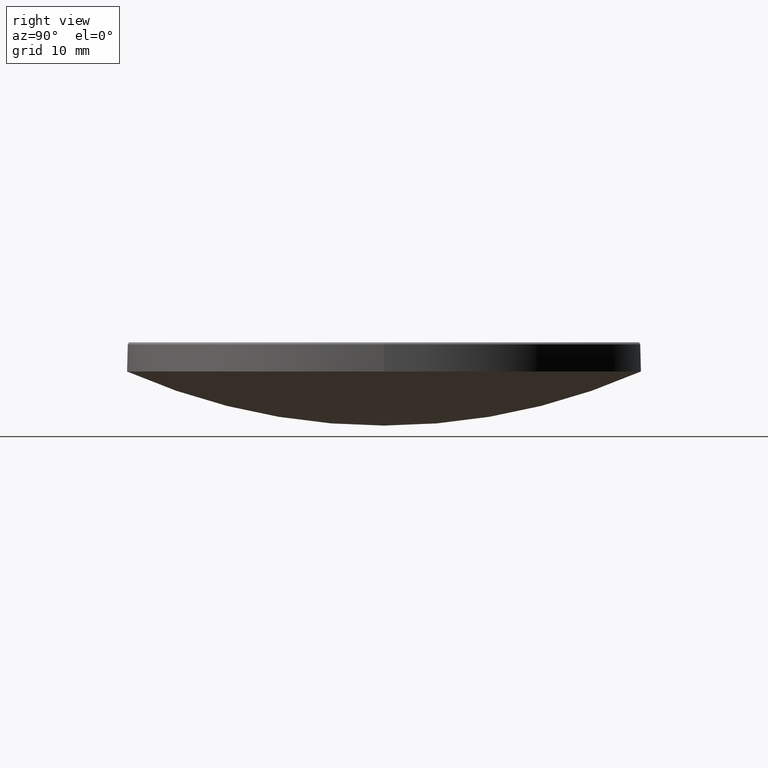
[diagram: clean part render]
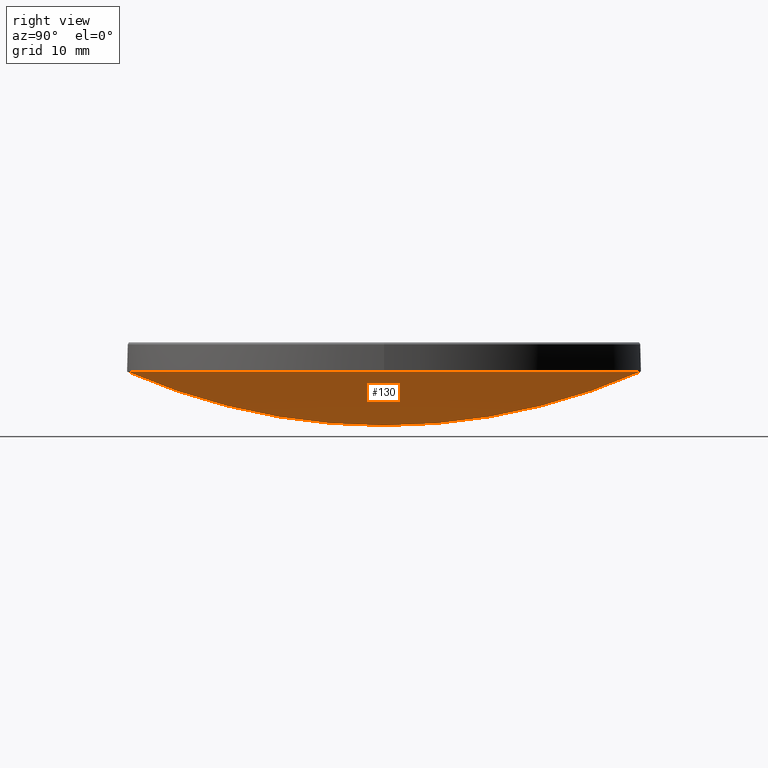
[diagram: same view with one face highlighted and labeled with its STEP entity id]
A machine part, right view. The second image highlights one B-rep face of the part: STEP entity #130.
In plain terms, the highlighted spherical surface has radius 63.02 mm.
Its self-contained STEP definition (entity closure, byte-faithful):
#7 = VERTEX_POINT ( 'NONE', #95 ) ;
#10 = EDGE_CURVE ( 'NONE', #160, #119, #40, .T. ) ;
#15 = DIRECTION ( 'NONE',  ( 0.000000000000000000, 1.000000000000000000, 0.000000000000000000 ) ) ;
#18 = CARTESIAN_POINT ( 'NONE',  ( 0.000000000000000000, 0.000000000000000000, 14.00000000000000000 ) ) ;
#20 = AXIS2_PLACEMENT_3D ( 'NONE', #41, #86, #15 ) ;
#23 = AXIS2_PLACEMENT_3D ( 'NONE', #247, #197, #232 ) ;
#35 = CARTESIAN_POINT ( 'NONE',  ( 25.39999999999999503, 3.110602869834276471E-15, 14.00000000000000000 ) ) ;
#37 = DIRECTION ( 'NONE',  ( -0.000000000000000000, -0.000000000000000000, 1.000000000000000000 ) ) ;
#40 = CIRCLE ( 'NONE', #23, 25.39999999999999503 ) ;
#41 = CARTESIAN_POINT ( 'NONE',  ( 0.000000000000000000, 0.000000000000000000, 71.67460793104710604 ) ) ;
#49 = VERTEX_POINT ( 'NONE', #75 ) ;
#75 = CARTESIAN_POINT ( 'NONE',  ( 0.000000000000000000, 3.858862064113310261E-15, 8.654607931047095803 ) ) ;
#86 = DIRECTION ( 'NONE',  ( -1.000000000000000000, 0.000000000000000000, 0.000000000000000000 ) ) ;
#95 = CARTESIAN_POINT ( 'NONE',  ( 0.000000000000000000, 25.39999999999999147, 14.00000000000000178 ) ) ;
#97 = ORIENTED_EDGE ( 'NONE', *, *, #201, .T. ) ;
#104 = CIRCLE ( 'NONE', #134, 63.02000000000000313 ) ;
#117 = DIRECTION ( 'NONE',  ( -1.224646799147353207E-16, -1.000000000000000000, 0.000000000000000000 ) ) ;
#119 = VERTEX_POINT ( 'NONE', #35 ) ;
#123 = CARTESIAN_POINT ( 'NONE',  ( -3.110602869834276076E-15, -25.39999999999999147, 14.00000000000000178 ) ) ;
#124 = DIRECTION ( 'NONE',  ( 1.000000000000000000, -0.000000000000000000, 0.000000000000000000 ) ) ;
#130 = ADVANCED_FACE ( 'NONE', ( #258 ), #216, .T. ) ;
#134 = AXIS2_PLACEMENT_3D ( 'NONE', #240, #248, #117 ) ;
#148 = ORIENTED_EDGE ( 'NONE', *, *, #256, .F. ) ;
#153 = AXIS2_PLACEMENT_3D ( 'NONE', #166, #124, #210 ) ;
#160 = VERTEX_POINT ( 'NONE', #123 ) ;
#166 = CARTESIAN_POINT ( 'NONE',  ( 0.000000000000000000, 0.000000000000000000, 71.67460793104710604 ) ) ;
#177 = EDGE_CURVE ( 'NONE', #119, #7, #186, .T. ) ;
#186 = CIRCLE ( 'NONE', #260, 25.39999999999999503 ) ;
#195 = EDGE_LOOP ( 'NONE', ( #148, #97, #262, #204 ) ) ;
#197 = DIRECTION ( 'NONE',  ( -0.000000000000000000, -0.000000000000000000, 1.000000000000000000 ) ) ;
#201 = EDGE_CURVE ( 'NONE', #49, #7, #215, .T. ) ;
#204 = ORIENTED_EDGE ( 'NONE', *, *, #10, .F. ) ;
#210 = DIRECTION ( 'NONE',  ( 0.000000000000000000, 0.000000000000000000, -1.000000000000000000 ) ) ;
#215 = CIRCLE ( 'NONE', #153, 63.02000000000000313 ) ;
#216 = SPHERICAL_SURFACE ( 'NONE', #20, 63.02000000000000313 ) ;
#232 = DIRECTION ( 'NONE',  ( 1.000000000000000000, 0.000000000000000000, 0.000000000000000000 ) ) ;
#236 = DIRECTION ( 'NONE',  ( 1.000000000000000000, 0.000000000000000000, 0.000000000000000000 ) ) ;
#240 = CARTESIAN_POINT ( 'NONE',  ( 0.000000000000000000, 0.000000000000000000, 71.67460793104710604 ) ) ;
#247 = CARTESIAN_POINT ( 'NONE',  ( 0.000000000000000000, 0.000000000000000000, 14.00000000000000000 ) ) ;
#248 = DIRECTION ( 'NONE',  ( -1.000000000000000000, 1.224646799147353207E-16, 0.000000000000000000 ) ) ;
#256 = EDGE_CURVE ( 'NONE', #49, #160, #104, .T. ) ;
#258 = FACE_OUTER_BOUND ( 'NONE', #195, .T. ) ;
#260 = AXIS2_PLACEMENT_3D ( 'NONE', #18, #37, #236 ) ;
#262 = ORIENTED_EDGE ( 'NONE', *, *, #177, .F. ) ;